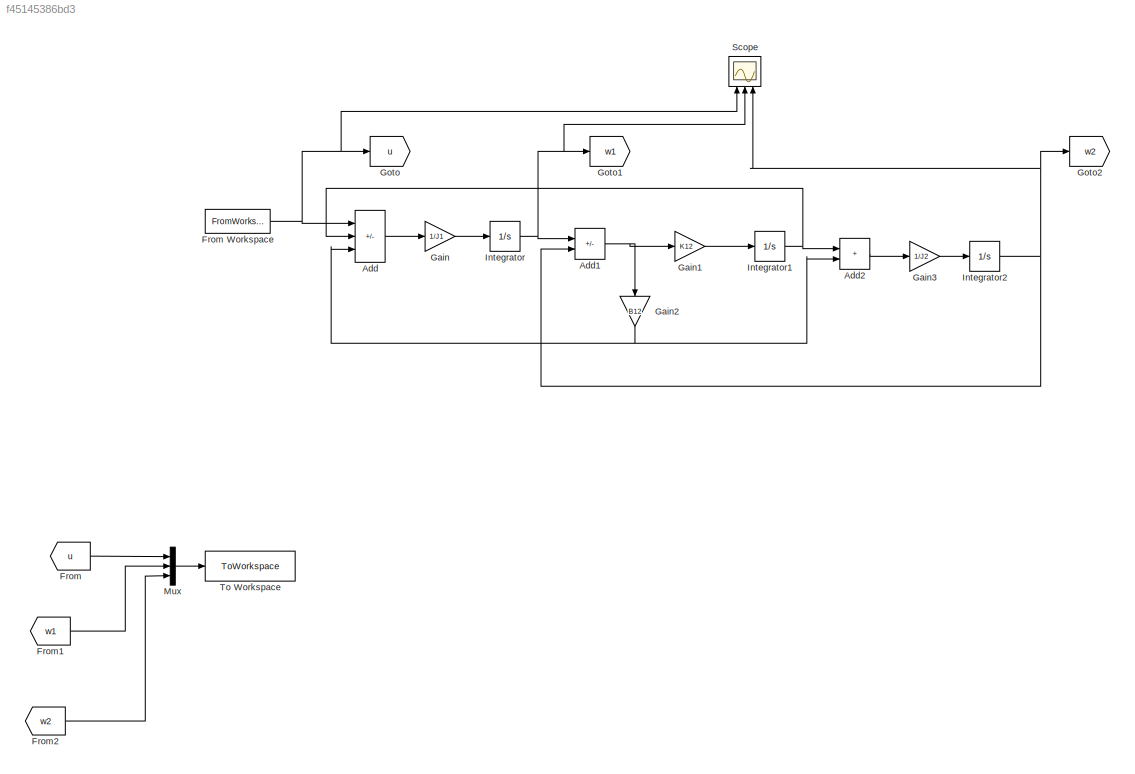
MODEL slx_f45145386bd3
KIND model
CONFIG AbsTol = auto
CONFIG EnableMultiTasking = off
CONFIG FixedStep = 1e-3
CONFIG MaxStep = auto
CONFIG MinStep = auto
CONFIG RelTol = 1e-3
CONFIG SampleTimeConstraint = Unconstrained
CONFIG SolverName = ode3
CONFIG StartTime = 0.0
CONFIG StopTime = 250
BLOCK [Sum] Add
  IconShape = rectangular
  Inputs = +--
  Ports = [3, 1]
BLOCK [Sum] Add1
  IconShape = rectangular
  Inputs = +-
  Ports = [2, 1]
BLOCK [Sum] Add2
  IconShape = rectangular
  Ports = [2, 1]
BLOCK [From] From
  GotoTag = u
BLOCK [FromWorkspace] From Workspace
  VariableName = [t, u]
BLOCK [From] From1
  GotoTag = w1
BLOCK [From] From2
  GotoTag = w2
BLOCK [Gain] Gain
  Gain = 1/J1
BLOCK [Gain] Gain1
  Gain = K12
BLOCK [Gain] Gain2
  Gain = B12
  NameLocation = left
BLOCK [Gain] Gain3
  Gain = 1/J2
BLOCK [Goto] Goto
  GotoTag = u
BLOCK [Goto] Goto1
  GotoTag = w1
BLOCK [Goto] Goto2
  GotoTag = w2
BLOCK [Integrator] Integrator
  Ports = [1, 1]
BLOCK [Integrator] Integrator1
  Ports = [1, 1]
BLOCK [Integrator] Integrator2
  Ports = [1, 1]
BLOCK [Mux] Mux
  DisplayOption = bar
  Inputs = 3
  Ports = [3, 1]
BLOCK [Scope] Scope
  Floating = off
  NameLocation = right
  NumInputPorts = 3
  Ports = [3]
  ScopeSpecificationString = Simulink.scopes.TimeScopeBlockCfg('CurrentConfiguration', extmgr.ConfigurationSet(extmgr.Configuration('Core','General UI',true),extmgr.Configuration('Core','Source UI',true),extmgr.Configuration('Sources','WiredSimulink',true),extmgr.Configuration('Visuals','Time Domain',true),extmgr.Configuration('Tools','Plot Navigation',true),extmgr.Configuration('Tools','Measurements',true,'Version','2022a'))...<+19ch>
BLOCK [ToWorkspace] To Workspace
  FixptAsFi = on
  MaxDataPoints = inf
  Ports = [1]
  SampleTime = -1
  SaveFormat = Structure With Time
  VariableName = out
NET Add1:1 -> Gain1:1, Gain2:1
LINE Add2:1 -> Gain3:1
LINE Add:1 -> Gain:1
NET From Workspace:1 -> Add:1, Goto:1, Scope:1
LINE From1:1 -> Mux:2
LINE From2:1 -> Mux:3
LINE From:1 -> Mux:1
LINE Gain1:1 -> Integrator1:1
NET Gain2:1 -> Add2:2, Add:3
LINE Gain3:1 -> Integrator2:1
LINE Gain:1 -> Integrator:1
NET Integrator1:1 -> Add2:1, Add:2
NET Integrator2:1 -> Add1:2, Goto2:1, Scope:3
NET Integrator:1 -> Add1:1, Goto1:1, Scope:2
LINE Mux:1 -> To Workspace:1
note: NET lines group one-source signal fan-out (src -> all destinations, sorted); 1:1 wires keep LINE
